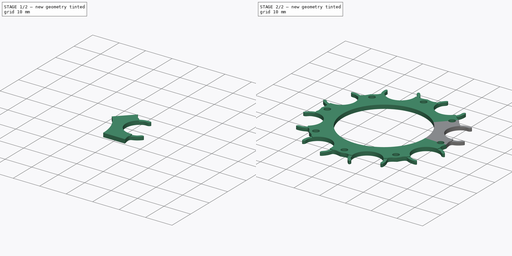
[diagram: build sequence overview — one tinted view per stage of 2, left to right]
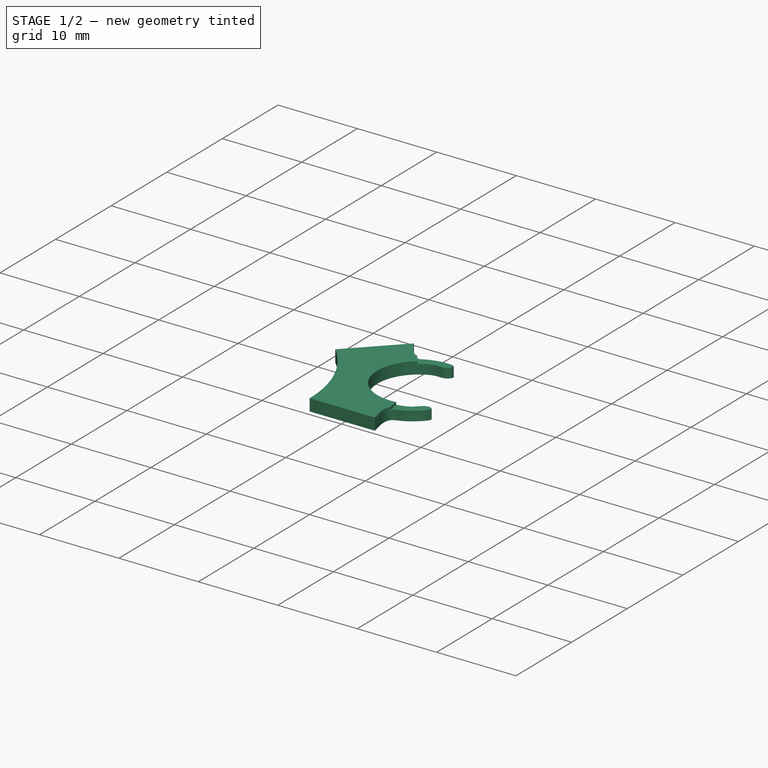
[diagram: stage 1 of 2 — iso view after this stage's code; geometry added in this stage tinted green]
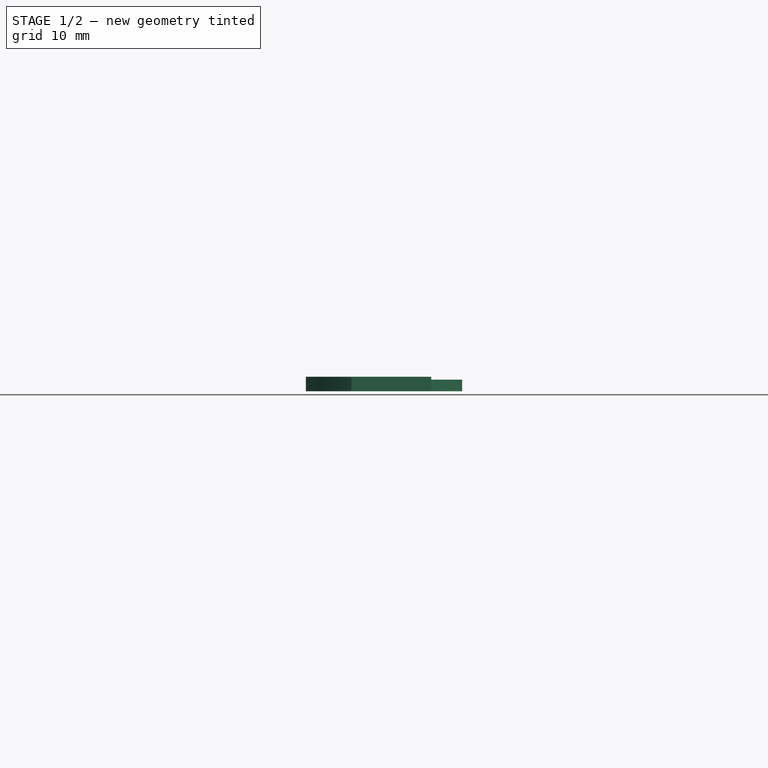
[diagram: stage 1 of 2 — front view after this stage's code; geometry added in this stage tinted green]
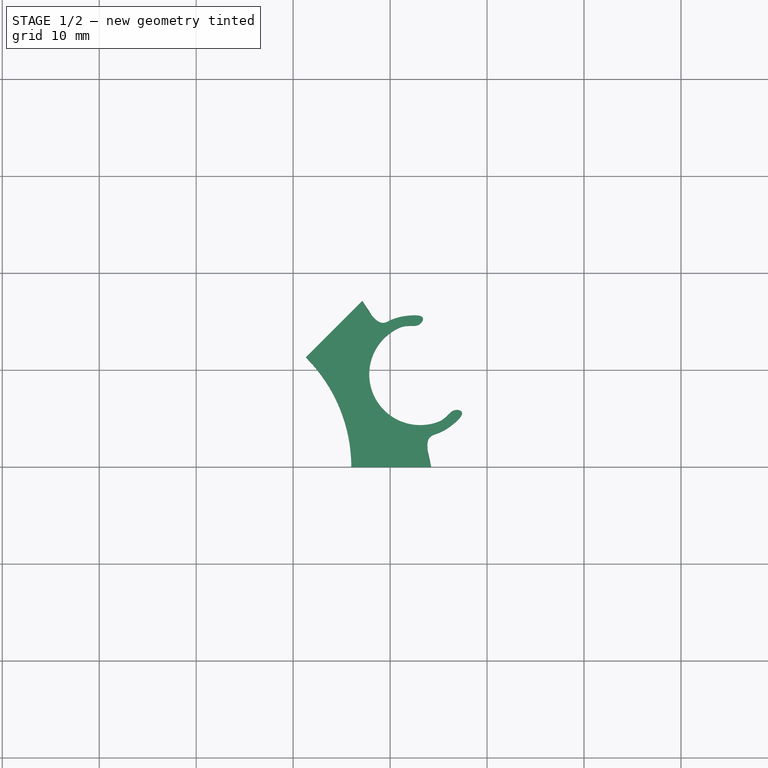
[diagram: stage 1 of 2 — top view after this stage's code; geometry added in this stage tinted green]
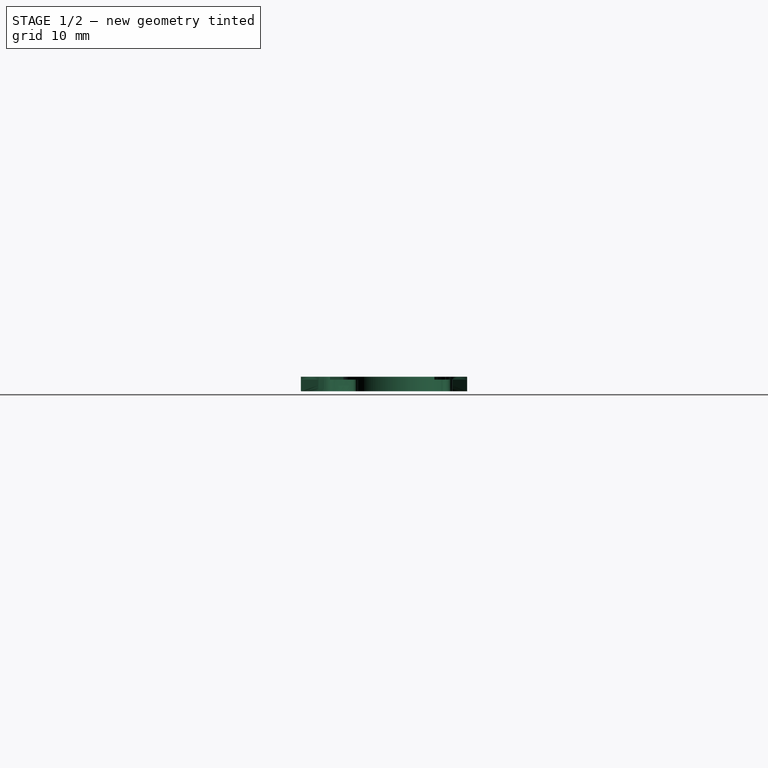
[diagram: stage 1 of 2 — right view after this stage's code; geometry added in this stage tinted green]
FCSTD DOCUMENT  (FreeCAD 0.19R22262 (Git))
Label: ToolChangerHolder_V2_Clip
License: All rights reserved
LicenseURL: http://en.wikipedia.org/wiki/All_rights_reserved
objects: Sketcher::SketchObject×3, PartDesign::Plane×2, PartDesign::Pad×1, PartDesign::Groove×1, PartDesign::Pocket×1, PartDesign::Body×1, Part::FeaturePython×1
note: 12 computed .brp shape members not serialized (recipe doc carries the construction recipe); baked Part::Feature solids carry a one-line shape summary decoded from their .brp

FEATURE [Sketcher::SketchObject] Sketch
  MapMode = 5
  Support = -> [XY_Plane001]
  sketch-geometry (22):
    g0: ArcOfCircle CenterX=0 CenterY=0 CenterZ=0 NormalX=0 NormalY=0 NormalZ=1 AngleXU=0 Radius=16 StartAngle=0 EndAngle=0.785398
    g1: LineSegment StartX=11.3137 StartY=11.3137 StartZ=0 EndX=17.1384 EndY=17.1384 EndZ=0
    g2: LineSegment StartX=16 StartY=0 StartZ=0 EndX=24.2374 EndY=0 EndZ=0
    g3: ArcOfCircle CenterX=23.097 CenterY=9.56709 CenterZ=0 NormalX=0 NormalY=0 NormalZ=1 AngleXU=0 Radius=5.25 StartAngle=1.9635 EndAngle=5.10509
    g4: LineSegment [constr] StartX=0 StartY=0 StartZ=0 EndX=31.4119 EndY=13.0112 EndZ=0
    g5: LineSegment [constr] StartX=21.0879 StartY=14.4175 StartZ=0 EndX=25.1061 EndY=4.71672 EndZ=0
    g6-g13: Circle [constr] x8 (B-spline internal-alignment scaffolding for g14; pole/knot coordinates omitted)
    g14: BSplineCurve PolesCount=8 KnotsCount=6 Degree=3 IsPeriodic=0
    g15-g20: GeomPoint [constr] x6 (B-spline internal-alignment scaffolding for g14; pole/knot coordinates omitted)
    g21: BSplineCurve PolesCount=8 KnotsCount=6 Degree=3 IsPeriodic=0
  constraints (25):
    c: Coincident(g0,g-1)
    c: PointOnObject(g0,g-1)
    c: Coincident(g1,g0)
    c: Coincident(g2,g0)
    c: Perpendicular(g0,g1)
    c: Angle(g2,g1) = 0.785398
    c: Radius(g0) = 16
    c: Coincident(g4,g0)
    c: Distance(g4) = 34
    c: Coincident(g5,g3)
    c: Coincident(g5,g3)
    c: PointOnObject(g3,g5)
    c: Perpendicular(g4,g5)
    c: PointOnObject(g3,g4)
    c: Angle(g-1,g4) = 0.392699
    c: Distance(g3,g0) = 25
    c: Diameter(g3) = 10.5
    c: Coincident(g14,g3)
    c: Radius(g6) = 0.2
    c: Equal(g6, g7-g13) x7
    c: InternalAlignment(g6-g13 -> g14) x8
    c: InternalAlignment(g15-g20 -> g14) x6
    c: Coincident(g1,g14)
    c: Equal(g1,g2)
    c: Horizontal(g2)
FEATURE [PartDesign::Pad] Pad
  Length = 1.5
  Length2 = 100
  Profile = -> Sketch
  Refine = true
  Type = 0
FEATURE [PartDesign::Plane] DatumPlane
  Length = 62.6658
  MapMode = 5
  Placement = pos=(0,0,0) rot=(1,0,0;1.5708rad)
  ResizeMode = 0
  Support = -> [Pad]
  Width = 60.2397
FEATURE [Sketcher::SketchObject] Sketch001
  ExternalGeometry = -> [Pad]
  MapMode = 5
  Placement = pos=(0,0,0) rot=(1,0,0;1.5708rad)
  Support = -> [DatumPlane]
  sketch-geometry (4):
    g0: LineSegment StartX=24.2374 StartY=1.2 StartZ=0 EndX=30 EndY=1.2 EndZ=0
    g1: LineSegment StartX=30 StartY=1.2 StartZ=0 EndX=30 EndY=2.2 EndZ=0
    g2: LineSegment StartX=30 StartY=2.2 StartZ=0 EndX=24.2374 EndY=2.2 EndZ=0
    g3: LineSegment StartX=24.2374 StartY=2.2 StartZ=0 EndX=24.2374 EndY=1.2 EndZ=0
  constraints (12):
    c: Coincident(g0,g1)
    c: Coincident(g1,g2)
    c: Coincident(g2,g3)
    c: Coincident(g3,g0)
    c: Horizontal(g0)
    c: Horizontal(g2)
    c: Vertical(g1)
    c: Vertical(g3)
    c: PointOnObject(g0,g-3)
    c: DistanceY(g0,g-3) = 0.3
    c: DistanceX(g-1,g0) = 30
    c: DistanceY(g1,g1) = 1
FEATURE [PartDesign::Groove] Groove
  Angle = 50
  Axis = (0,2e-16,1)
  Base = (0,0,0)
  BaseFeature = -> Pad
  Profile = -> Sketch001
  ReferenceAxis = -> Sketch001 [V_Axis]
  Refine = true
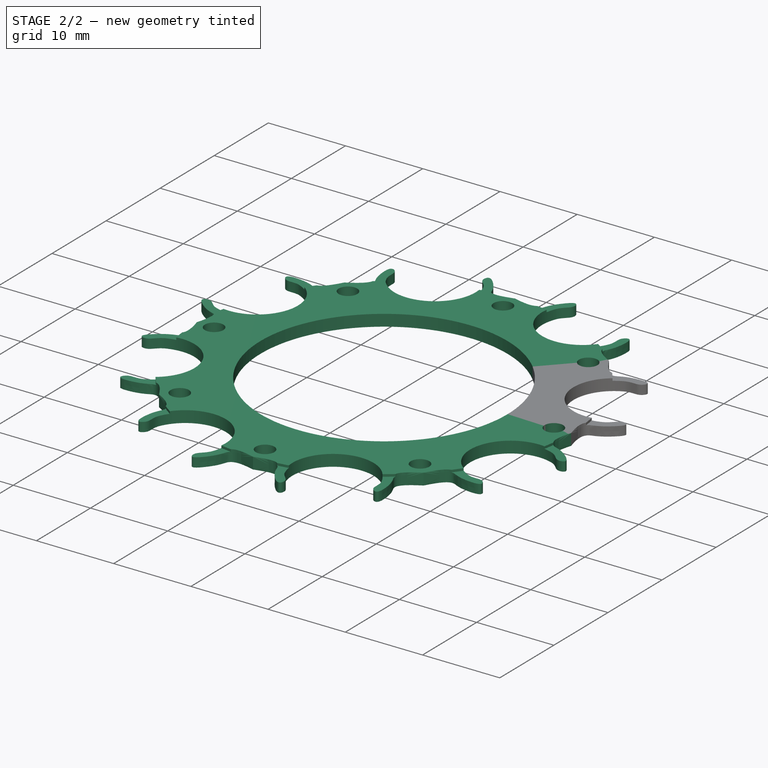
[diagram: stage 2 of 2 — iso view after this stage's code; geometry added in this stage tinted green]
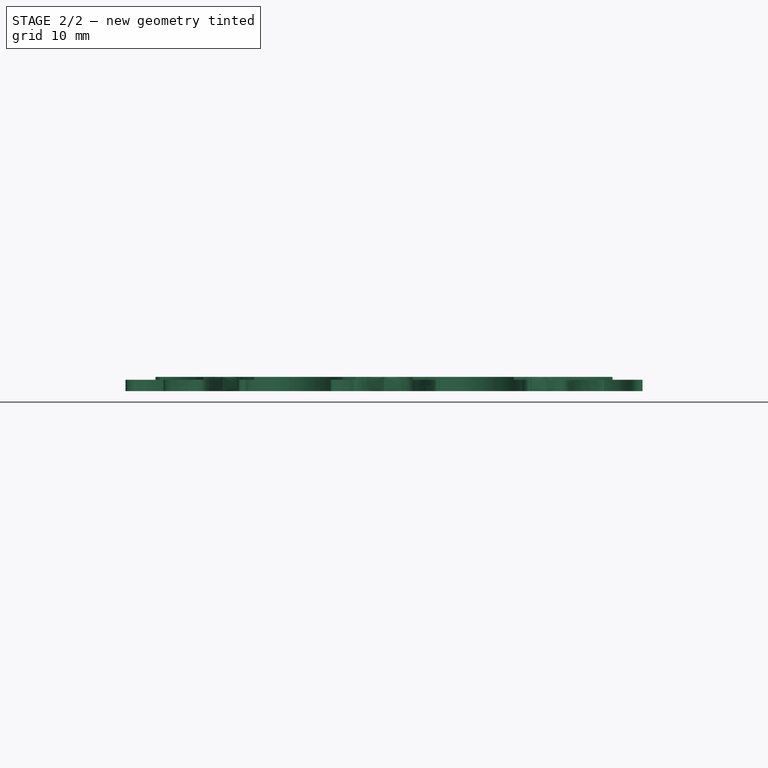
[diagram: stage 2 of 2 — front view after this stage's code; geometry added in this stage tinted green]
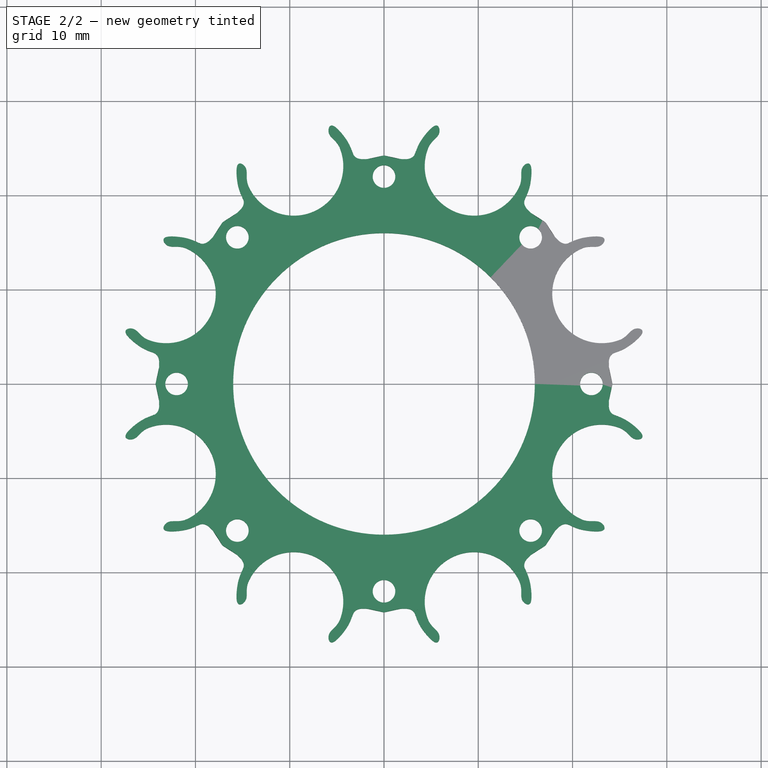
[diagram: stage 2 of 2 — top view after this stage's code; geometry added in this stage tinted green]
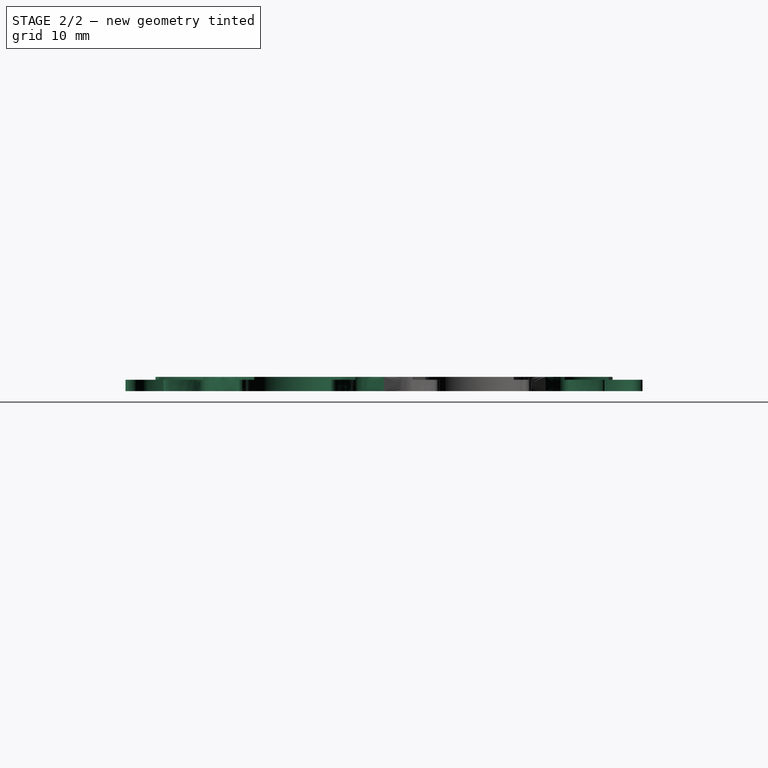
[diagram: stage 2 of 2 — right view after this stage's code; geometry added in this stage tinted green]
FEATURE [PartDesign::Plane] DatumPlane001
  Length = 62.6658
  MapMode = 5
  Placement = pos=(0,0,1.5) rot=(0,0,1;0rad)
  ResizeMode = 0
  Support = -> [Pad]
  Width = 60.2397
FEATURE [Sketcher::SketchObject] Sketch002
  MapMode = 5
  Placement = pos=(0,0,1.5) rot=(0,0,1;0rad)
  Support = -> [DatumPlane001]
  sketch-geometry (3):
    g0: Circle CenterX=22 CenterY=0 CenterZ=0 NormalX=0 NormalY=0 NormalZ=1 AngleXU=0 Radius=1.2
    g1: Circle CenterX=15.5563 CenterY=15.5563 CenterZ=0 NormalX=0 NormalY=0 NormalZ=1 AngleXU=0 Radius=1.2
    g2: ArcOfCircle [constr] CenterX=0 CenterY=0 CenterZ=0 NormalX=0 NormalY=0 NormalZ=1 AngleXU=0 Radius=22 StartAngle=0 EndAngle=0.785398
  constraints (8):
    c: PointOnObject(g0,g-1)
    c: Coincident(g2,g-1)
    c: Coincident(g2,g0)
    c: Coincident(g2,g1)
    c: Radius(g2) = 22
    c: Angle(g2) = 0.785398
    c: Equal(g0,g1)
    c: Diameter(g0) = 2.4
FEATURE [PartDesign::Pocket] Pocket
  BaseFeature = -> Groove
  Length = 5
  Length2 = 100
  Profile = -> Sketch002
  Refine = true
  Type = 1
FEATURE [PartDesign::Body] Body
  Group = -> [Sketch,Pad,DatumPlane,Sketch001,Groove,DatumPlane001,Sketch002,Pocket]
  Origin = -> Origin
  Tip = -> Pocket
FEATURE [Part::FeaturePython] Array  # Draft array (typed FeaturePython)
  Angle = 360
  ArrayType = 1
  Axis = (0,0,1)
  Base = -> Pocket
  Center = (0,0,0)
  Count = 8
  ExpandArray = false
  Fuse = false
  IntervalAxis = (0,0,0)
  IntervalX = (50,0,0)
  IntervalY = (0,50,0)
  IntervalZ = (0,0,50)
  NumberCircles = 3
  NumberPolar = 8
  NumberX = 2
  NumberY = 2
  NumberZ = 1
  PlacementList = 8 placements: [(0,0,0),(0,0,0),(0,0,0),(0,0,0),(0,0,0),(0,0,0),(0,0,0),(0,0,0)]
  RadialDistance = 50
  ScaleList = (8) [(1,1,1),(1,1,1),(1,1,1),(1,1,1),(1,1,1),(1,1,1),(1,1,1),(1,1,1)]
  Symmetry = 1
  TangentialDistance = 25
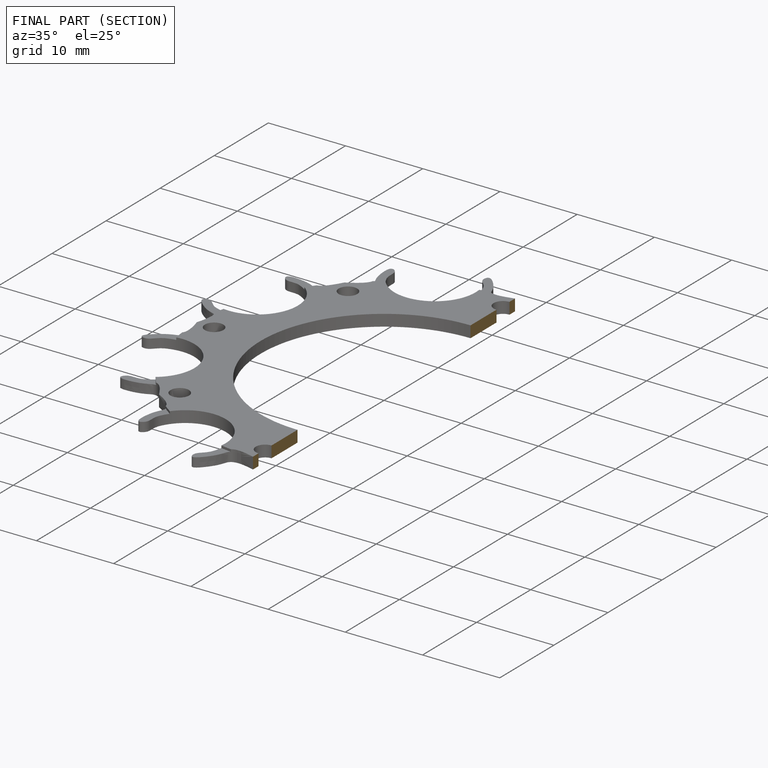
[diagram: finished part — half-section view (interior)]
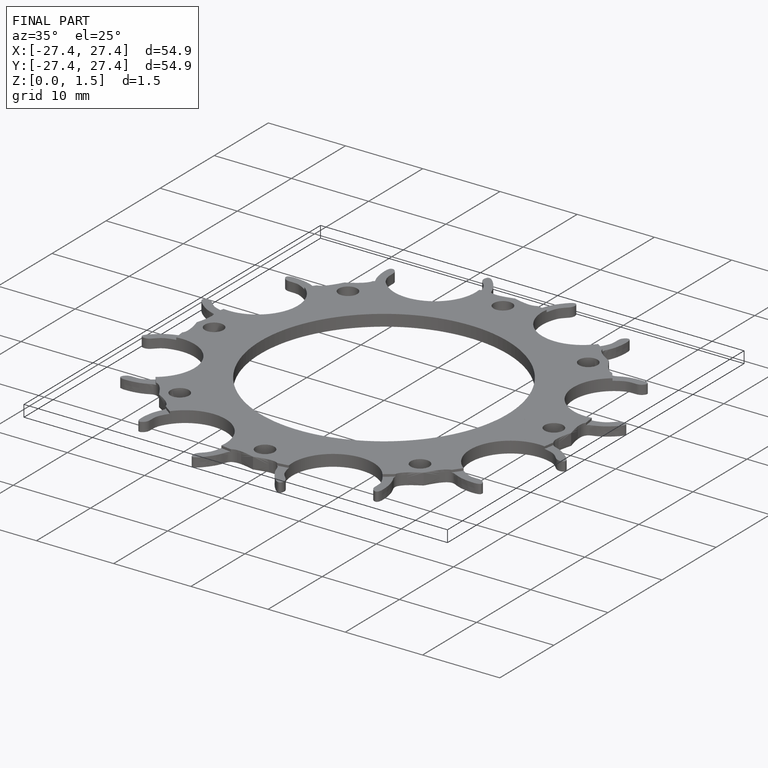
[diagram: finished part — iso view with bounding-box wireframe]
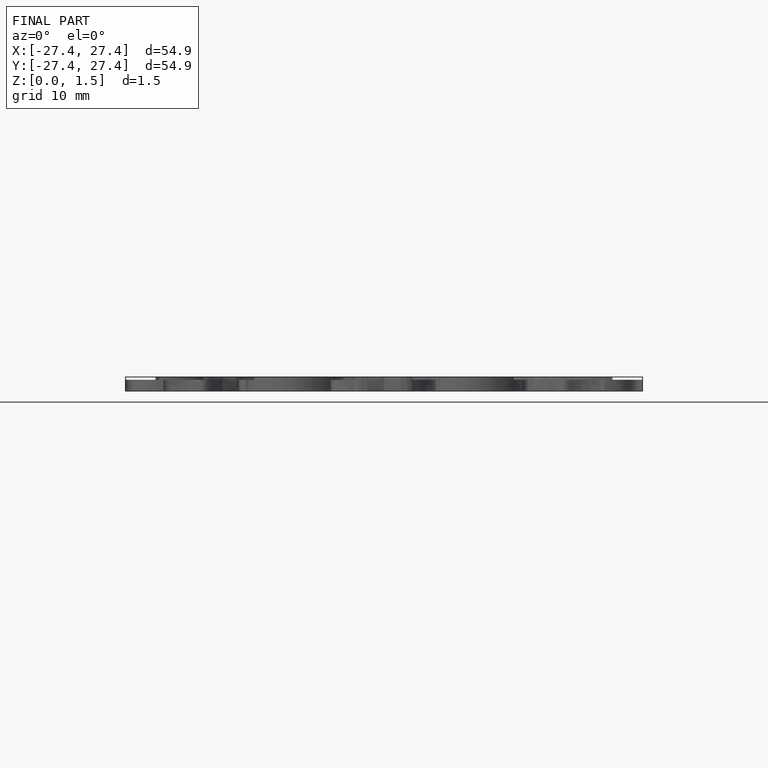
[diagram: finished part — front view with bounding-box wireframe]
